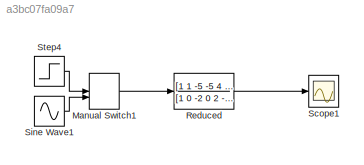
MODEL slx_a3bc07fa09a7
KIND model
CONFIG AbsTol = auto
CONFIG EnableMultiTasking = off
CONFIG FixedStep = auto
CONFIG MaxStep = auto
CONFIG MinStep = auto
CONFIG RelTol = 1e-3
CONFIG SampleTimeConstraint = Unconstrained
CONFIG SolverName = VariableStepAuto
CONFIG StartTime = 0.0
CONFIG StopTime = 10.0
BLOCK [ManualSwitch] Manual Switch1
  CurrentSetting = 0
BLOCK [TransferFcn] Reduced
  Denominator = [1 0 -2 0 2 -1 -2 2 1 -1 0 0 0]
  Numerator = [1 1 -5 -5 4 4 0 0 0 0]
BLOCK [Scope] Scope1
  Floating = off
  NumInputPorts = 1
  ScopeSpecificationString = Simulink.scopes.TimeScopeBlockCfg('CurrentConfiguration', extmgr.ConfigurationSet(extmgr.Configuration('Core','General UI',true),extmgr.Configuration('Core','Source UI',true),extmgr.Configuration('Sources','WiredSimulink',true),extmgr.Configuration('Visuals','Time Domain',true,'SerializedDisplays',{struct('MinYLimReal','-31555.41837','MaxYLimReal','3506.84673','YLabelReal','','MinYLimMag','   0.00...<+1492ch>
BLOCK [Sin] Sine Wave1
  SampleTime = 0
BLOCK [Step] Step4
  SampleTime = 0
  Time = 0
LINE Manual Switch1:1 -> Reduced:1
LINE Reduced:1 -> Scope1:1
LINE Sine Wave1:1 -> Manual Switch1:2
LINE Step4:1 -> Manual Switch1:1
